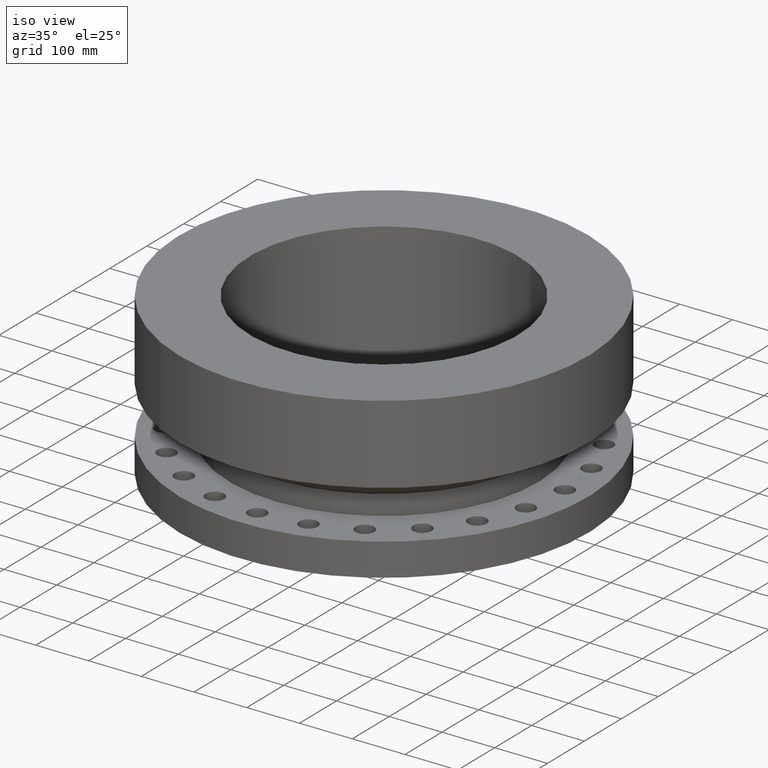
[diagram: clean part render]
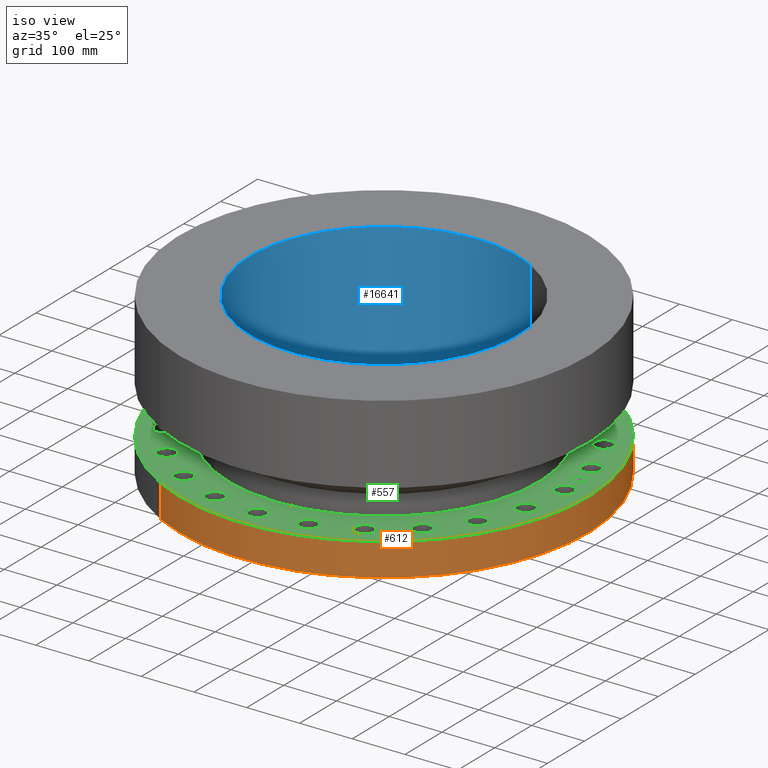
[diagram: same view with three faces highlighted in distinct colors, each labeled with its STEP entity id]
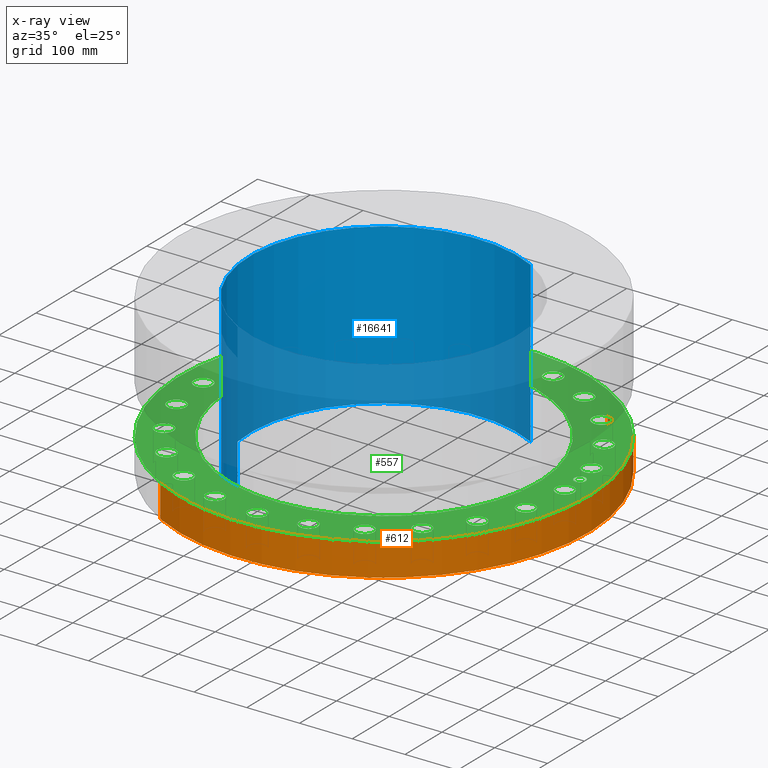
[diagram: x-ray of the same camera — body ghosted, the three highlighted faces saturated]
A machine part, iso view with three faces highlighted in distinct colors.
The next image is the same camera in x-ray (body ghosted, the three faces saturated) — at least one of them is partly hidden behind the body in this view.
Their STEP definitions:

[orange] entity #612 — the highlighted cylindrical surface (partial cylindrical patch) has radius 387.35 mm, axis along (0, 0, -1).
#82=AXIS2_PLACEMENT_3D('Circle Axis2P3D',#80,#81,$) ;
#573=AXIS2_PLACEMENT_3D('Cylinder Axis2P3D',#570,#571,#572) ;
#603=AXIS2_PLACEMENT_3D('Circle Axis2P3D',#601,#602,$) ;
#80=CARTESIAN_POINT('Axis2P3D Location',(0.,0.,2.43750000001)) ;
#84=CARTESIAN_POINT('Vertex',(7.31123946374,13.3831340689,2.43750000001)) ;
#86=CARTESIAN_POINT('Vertex',(-7.31123946374,-13.3831340689,2.43750000001)) ;
#570=CARTESIAN_POINT('Axis2P3D Location',(0.,0.,5.93750000002)) ;
#579=CARTESIAN_POINT('Vertex',(-7.31123946374,-13.3831340689,2.23792987641E-015)) ;
#581=CARTESIAN_POINT('Vertex',(7.31123946374,13.3831340689,2.23792987641E-015)) ;
#584=CARTESIAN_POINT('Line Origine',(-7.31123946374,-13.3831340689,9.00271124669)) ;
#589=CARTESIAN_POINT('Line Origine',(7.31123946374,13.3831340689,9.00271124669)) ;
#601=CARTESIAN_POINT('Axis2P3D Location',(0.,0.,2.23792987641E-015)) ;
#81=DIRECTION('Axis2P3D Direction',(0.,0.,-0.0393700787402)) ;
#571=DIRECTION('Axis2P3D Direction',(0.,0.,-0.0393700787402)) ;
#572=DIRECTION('Axis2P3D XDirection',(-0.0188750212049,-0.0345504945626,0.)) ;
#585=DIRECTION('Vector Direction',(0.,0.,-0.0393700787402)) ;
#590=DIRECTION('Vector Direction',(0.,0.,-0.0393700787402)) ;
#602=DIRECTION('Axis2P3D Direction',(0.,0.,-0.0393700787402)) ;
#586=VECTOR('Line Direction',#585,0.0393700787402) ;
#591=VECTOR('Line Direction',#590,0.0393700787402) ;
#607=ORIENTED_EDGE('',*,*,#605,.F.) ;
#608=ORIENTED_EDGE('',*,*,#593,.T.) ;
#609=ORIENTED_EDGE('',*,*,#88,.T.) ;
#610=ORIENTED_EDGE('',*,*,#588,.F.) ;
#612=ADVANCED_FACE('PartBody',(#611),#574,.T.) ;
#83=CIRCLE('generated circle',#82,15.2500000001) ;
#604=CIRCLE('generated circle',#603,15.2500000001) ;
#574=CYLINDRICAL_SURFACE('generated cylinder',#573,15.2500000001) ;
#88=EDGE_CURVE('',#85,#87,#83,.T.) ;
#588=EDGE_CURVE('',#580,#87,#587,.F.) ;
#593=EDGE_CURVE('',#582,#85,#592,.F.) ;
#605=EDGE_CURVE('',#582,#580,#604,.T.) ;
#606=EDGE_LOOP('',(#607,#608,#609,#610)) ;
#611=FACE_OUTER_BOUND('',#606,.T.) ;
#587=LINE('Line',#584,#586) ;
#592=LINE('Line',#589,#591) ;
#85=VERTEX_POINT('',#84) ;
#87=VERTEX_POINT('',#86) ;
#580=VERTEX_POINT('',#579) ;
#582=VERTEX_POINT('',#581) ;

[blue] entity #16641 — the highlighted cylindrical surface (partial cylindrical patch) has radius 254 mm, axis along (0, 0, -1).
#16164=AXIS2_PLACEMENT_3D('Circle Axis2P3D',#16162,#16163,$) ;
#16602=AXIS2_PLACEMENT_3D('Cylinder Axis2P3D',#16599,#16600,#16601) ;
#16632=AXIS2_PLACEMENT_3D('Circle Axis2P3D',#16630,#16631,$) ;
#16162=CARTESIAN_POINT('Axis2P3D Location',(0.,0.,11.9375)) ;
#16166=CARTESIAN_POINT('Vertex',(-4.79425538606,-8.77582561894,11.9375)) ;
#16168=CARTESIAN_POINT('Vertex',(4.79425538606,8.77582561894,11.9375)) ;
#16599=CARTESIAN_POINT('Axis2P3D Location',(0.,0.,5.93750000002)) ;
#16608=CARTESIAN_POINT('Vertex',(-4.79425538606,-8.77582561894,0.)) ;
#16610=CARTESIAN_POINT('Vertex',(4.79425538606,8.77582561894,0.)) ;
#16613=CARTESIAN_POINT('Line Origine',(-4.79425538606,-8.77582561894,5.96875000002)) ;
#16618=CARTESIAN_POINT('Line Origine',(4.79425538606,8.77582561894,5.96875000002)) ;
#16630=CARTESIAN_POINT('Axis2P3D Location',(0.,0.,0.)) ;
#16163=DIRECTION('Axis2P3D Direction',(0.,0.,-0.0393700787402)) ;
#16600=DIRECTION('Axis2P3D Direction',(0.,0.,-0.0393700787402)) ;
#16601=DIRECTION('Axis2P3D XDirection',(-0.0188750212049,-0.0345504945626,0.)) ;
#16614=DIRECTION('Vector Direction',(0.,0.,-0.0393700787402)) ;
#16619=DIRECTION('Vector Direction',(0.,0.,-0.0393700787402)) ;
#16631=DIRECTION('Axis2P3D Direction',(0.,0.,-0.0393700787402)) ;
#16615=VECTOR('Line Direction',#16614,0.0393700787402) ;
#16620=VECTOR('Line Direction',#16619,0.0393700787402) ;
#16636=ORIENTED_EDGE('',*,*,#16634,.F.) ;
#16637=ORIENTED_EDGE('',*,*,#16622,.F.) ;
#16638=ORIENTED_EDGE('',*,*,#16170,.F.) ;
#16639=ORIENTED_EDGE('',*,*,#16617,.T.) ;
#16641=ADVANCED_FACE('PartBody',(#16640),#16603,.F.) ;
#16165=CIRCLE('generated circle',#16164,10.) ;
#16633=CIRCLE('generated circle',#16632,10.) ;
#16603=CYLINDRICAL_SURFACE('generated cylinder',#16602,10.) ;
#16170=EDGE_CURVE('',#16167,#16169,#16165,.T.) ;
#16617=EDGE_CURVE('',#16167,#16609,#16616,.T.) ;
#16622=EDGE_CURVE('',#16169,#16611,#16621,.T.) ;
#16634=EDGE_CURVE('',#16611,#16609,#16633,.F.) ;
#16635=EDGE_LOOP('',(#16636,#16637,#16638,#16639)) ;
#16640=FACE_OUTER_BOUND('',#16635,.T.) ;
#16616=LINE('Line',#16613,#16615) ;
#16621=LINE('Line',#16618,#16620) ;
#16167=VERTEX_POINT('',#16166) ;
#16169=VERTEX_POINT('',#16168) ;
#16609=VERTEX_POINT('',#16608) ;
#16611=VERTEX_POINT('',#16610) ;

[green] entity #557 — the highlighted planar face has unit normal (0, 0, -1).
#65=AXIS2_PLACEMENT_3D('Circle Axis2P3D',#63,#64,$) ;
#78=AXIS2_PLACEMENT_3D('Plane Axis2P3D',#75,#76,#77) ;
#82=AXIS2_PLACEMENT_3D('Circle Axis2P3D',#80,#81,$) ;
#91=AXIS2_PLACEMENT_3D('Circle Axis2P3D',#89,#90,$) ;
#100=AXIS2_PLACEMENT_3D('Circle Axis2P3D',#98,#99,$) ;
#109=AXIS2_PLACEMENT_3D('Circle Axis2P3D',#107,#108,$) ;
#118=AXIS2_PLACEMENT_3D('Circle Axis2P3D',#116,#117,$) ;
#127=AXIS2_PLACEMENT_3D('Circle Axis2P3D',#125,#126,$) ;
#136=AXIS2_PLACEMENT_3D('Circle Axis2P3D',#134,#135,$) ;
#145=AXIS2_PLACEMENT_3D('Circle Axis2P3D',#143,#144,$) ;
#154=AXIS2_PLACEMENT_3D('Circle Axis2P3D',#152,#153,$) ;
#163=AXIS2_PLACEMENT_3D('Circle Axis2P3D',#161,#162,$) ;
#172=AXIS2_PLACEMENT_3D('Circle Axis2P3D',#170,#171,$) ;
#181=AXIS2_PLACEMENT_3D('Circle Axis2P3D',#179,#180,$) ;
#190=AXIS2_PLACEMENT_3D('Circle Axis2P3D',#188,#189,$) ;
#199=AXIS2_PLACEMENT_3D('Circle Axis2P3D',#197,#198,$) ;
#208=AXIS2_PLACEMENT_3D('Circle Axis2P3D',#206,#207,$) ;
#217=AXIS2_PLACEMENT_3D('Circle Axis2P3D',#215,#216,$) ;
#226=AXIS2_PLACEMENT_3D('Circle Axis2P3D',#224,#225,$) ;
#235=AXIS2_PLACEMENT_3D('Circle Axis2P3D',#233,#234,$) ;
#244=AXIS2_PLACEMENT_3D('Circle Axis2P3D',#242,#243,$) ;
#253=AXIS2_PLACEMENT_3D('Circle Axis2P3D',#251,#252,$) ;
#262=AXIS2_PLACEMENT_3D('Circle Axis2P3D',#260,#261,$) ;
#271=AXIS2_PLACEMENT_3D('Circle Axis2P3D',#269,#270,$) ;
#280=AXIS2_PLACEMENT_3D('Circle Axis2P3D',#278,#279,$) ;
#289=AXIS2_PLACEMENT_3D('Circle Axis2P3D',#287,#288,$) ;
#298=AXIS2_PLACEMENT_3D('Circle Axis2P3D',#296,#297,$) ;
#307=AXIS2_PLACEMENT_3D('Circle Axis2P3D',#305,#306,$) ;
#316=AXIS2_PLACEMENT_3D('Circle Axis2P3D',#314,#315,$) ;
#325=AXIS2_PLACEMENT_3D('Circle Axis2P3D',#323,#324,$) ;
#334=AXIS2_PLACEMENT_3D('Circle Axis2P3D',#332,#333,$) ;
#343=AXIS2_PLACEMENT_3D('Circle Axis2P3D',#341,#342,$) ;
#352=AXIS2_PLACEMENT_3D('Circle Axis2P3D',#350,#351,$) ;
#361=AXIS2_PLACEMENT_3D('Circle Axis2P3D',#359,#360,$) ;
#370=AXIS2_PLACEMENT_3D('Circle Axis2P3D',#368,#369,$) ;
#379=AXIS2_PLACEMENT_3D('Circle Axis2P3D',#377,#378,$) ;
#388=AXIS2_PLACEMENT_3D('Circle Axis2P3D',#386,#387,$) ;
#397=AXIS2_PLACEMENT_3D('Circle Axis2P3D',#395,#396,$) ;
#406=AXIS2_PLACEMENT_3D('Circle Axis2P3D',#404,#405,$) ;
#415=AXIS2_PLACEMENT_3D('Circle Axis2P3D',#413,#414,$) ;
#424=AXIS2_PLACEMENT_3D('Circle Axis2P3D',#422,#423,$) ;
#433=AXIS2_PLACEMENT_3D('Circle Axis2P3D',#431,#432,$) ;
#442=AXIS2_PLACEMENT_3D('Circle Axis2P3D',#440,#441,$) ;
#451=AXIS2_PLACEMENT_3D('Circle Axis2P3D',#449,#450,$) ;
#460=AXIS2_PLACEMENT_3D('Circle Axis2P3D',#458,#459,$) ;
#469=AXIS2_PLACEMENT_3D('Circle Axis2P3D',#467,#468,$) ;
#478=AXIS2_PLACEMENT_3D('Circle Axis2P3D',#476,#477,$) ;
#487=AXIS2_PLACEMENT_3D('Circle Axis2P3D',#485,#486,$) ;
#496=AXIS2_PLACEMENT_3D('Circle Axis2P3D',#494,#495,$) ;
#505=AXIS2_PLACEMENT_3D('Circle Axis2P3D',#503,#504,$) ;
#514=AXIS2_PLACEMENT_3D('Circle Axis2P3D',#512,#513,$) ;
#523=AXIS2_PLACEMENT_3D('Circle Axis2P3D',#521,#522,$) ;
#532=AXIS2_PLACEMENT_3D('Circle Axis2P3D',#530,#531,$) ;
#541=AXIS2_PLACEMENT_3D('Circle Axis2P3D',#539,#540,$) ;
#550=AXIS2_PLACEMENT_3D('Circle Axis2P3D',#548,#549,$) ;
#44=CARTESIAN_POINT('Vertex',(14.1055319678,0.330803621638,2.43750000001)) ;
#60=CARTESIAN_POINT('Vertex',(12.8944680323,-0.330803621638,2.43750000001)) ;
#63=CARTESIAN_POINT('Axis2P3D Location',(13.5000000001,0.,2.43750000001)) ;
#75=CARTESIAN_POINT('Axis2P3D Location',(0.,15.2500000001,2.43750000001)) ;
#80=CARTESIAN_POINT('Axis2P3D Location',(0.,0.,2.43750000001)) ;
#84=CARTESIAN_POINT('Vertex',(7.31123946374,13.3831340689,2.43750000001)) ;
#86=CARTESIAN_POINT('Vertex',(-7.31123946374,-13.3831340689,2.43750000001)) ;
#89=CARTESIAN_POINT('Axis2P3D Location',(0.,0.,2.43750000001)) ;
#98=CARTESIAN_POINT('Axis2P3D Location',(13.5000000001,0.,2.43750000001)) ;
#107=CARTESIAN_POINT('Axis2P3D Location',(0.,0.,2.43750000001)) ;
#111=CARTESIAN_POINT('Vertex',(-5.53496784321,-10.1316906771,2.43750000001)) ;
#113=CARTESIAN_POINT('Vertex',(5.53496784321,10.1316906771,2.43750000001)) ;
#116=CARTESIAN_POINT('Axis2P3D Location',(0.,0.,2.43750000001)) ;
#125=CARTESIAN_POINT('Axis2P3D Location',(13.039998655,-3.4940571089,2.43750000001)) ;
#129=CARTESIAN_POINT('Vertex',(12.3694814112,-3.65686566481,2.43750000001)) ;
#131=CARTESIAN_POINT('Vertex',(13.7105158987,-3.33124855299,2.43750000001)) ;
#134=CARTESIAN_POINT('Axis2P3D Location',(13.039998655,-3.4940571089,2.43750000001)) ;
#143=CARTESIAN_POINT('Axis2P3D Location',(11.6913429511,-6.75000000003,2.43750000001)) ;
#147=CARTESIAN_POINT('Vertex',(11.0015350735,-6.73371835618,2.43750000001)) ;
#149=CARTESIAN_POINT('Vertex',(12.3811508288,-6.76628164388,2.43750000001)) ;
#152=CARTESIAN_POINT('Axis2P3D Location',(11.6913429511,-6.75000000003,2.43750000001)) ;
#161=CARTESIAN_POINT('Axis2P3D Location',(9.54594154606,-9.54594154606,2.43750000001)) ;
#165=CARTESIAN_POINT('Vertex',(8.88385230136,-9.35167926957,2.43750000001)) ;
#167=CARTESIAN_POINT('Vertex',(10.2080307907,-9.74020382255,2.43750000001)) ;
#170=CARTESIAN_POINT('Axis2P3D Location',(9.54594154606,-9.54594154606,2.43750000001)) ;
#179=CARTESIAN_POINT('Axis2P3D Location',(6.75000000003,-11.6913429511,2.43750000001)) ;
#183=CARTESIAN_POINT('Vertex',(6.16074967617,-11.3323386951,2.43750000001)) ;
#185=CARTESIAN_POINT('Vertex',(7.33925032388,-12.0503472072,2.43750000001)) ;
#188=CARTESIAN_POINT('Axis2P3D Location',(6.75000000003,-11.6913429511,2.43750000001)) ;
#197=CARTESIAN_POINT('Axis2P3D Location',(3.4940571089,-13.039998655,2.43750000001)) ;
#201=CARTESIAN_POINT('Vertex',(3.01780214167,-12.5407179662,2.43750000001)) ;
#203=CARTESIAN_POINT('Vertex',(3.97031207613,-13.5392793437,2.43750000001)) ;
#206=CARTESIAN_POINT('Axis2P3D Location',(3.4940571089,-13.039998655,2.43750000001)) ;
#215=CARTESIAN_POINT('Axis2P3D Location',(-1.53857679003E-015,-13.5000000001,2.43750000001)) ;
#219=CARTESIAN_POINT('Vertex',(-0.330803621638,-12.8944680323,2.43750000001)) ;
#221=CARTESIAN_POINT('Vertex',(0.330803621638,-14.1055319678,2.43750000001)) ;
#224=CARTESIAN_POINT('Axis2P3D Location',(-1.39870617276E-015,-13.5000000001,2.43750000001)) ;
#233=CARTESIAN_POINT('Axis2P3D Location',(-3.4940571089,-13.039998655,2.43750000001)) ;
#237=CARTESIAN_POINT('Vertex',(-3.65686566481,-12.3694814112,2.43750000001)) ;
#239=CARTESIAN_POINT('Vertex',(-3.33124855299,-13.7105158987,2.43750000001)) ;
#242=CARTESIAN_POINT('Axis2P3D Location',(-3.4940571089,-13.039998655,2.43750000001)) ;
#251=CARTESIAN_POINT('Axis2P3D Location',(-6.75000000003,-11.6913429511,2.43750000001)) ;
#255=CARTESIAN_POINT('Vertex',(-6.73371835618,-11.0015350735,2.43750000001)) ;
#257=CARTESIAN_POINT('Vertex',(-6.76628164388,-12.3811508288,2.43750000001)) ;
#260=CARTESIAN_POINT('Axis2P3D Location',(-6.75000000003,-11.6913429511,2.43750000001)) ;
#269=CARTESIAN_POINT('Axis2P3D Location',(-9.54594154606,-9.54594154606,2.43750000001)) ;
#273=CARTESIAN_POINT('Vertex',(-9.35167926957,-8.88385230136,2.43750000001)) ;
#275=CARTESIAN_POINT('Vertex',(-9.74020382255,-10.2080307907,2.43750000001)) ;
#278=CARTESIAN_POINT('Axis2P3D Location',(-9.54594154606,-9.54594154606,2.43750000001)) ;
#287=CARTESIAN_POINT('Axis2P3D Location',(-11.6913429511,-6.75000000003,2.43750000001)) ;
#291=CARTESIAN_POINT('Vertex',(-11.3323386951,-6.16074967617,2.43750000001)) ;
#293=CARTESIAN_POINT('Vertex',(-12.0503472072,-7.33925032388,2.43750000001)) ;
#296=CARTESIAN_POINT('Axis2P3D Location',(-11.6913429511,-6.75000000003,2.43750000001)) ;
#305=CARTESIAN_POINT('Axis2P3D Location',(-13.039998655,-3.4940571089,2.43750000001)) ;
#309=CARTESIAN_POINT('Vertex',(-12.5407179662,-3.01780214167,2.43750000001)) ;
#311=CARTESIAN_POINT('Vertex',(-13.5392793437,-3.97031207613,2.43750000001)) ;
#314=CARTESIAN_POINT('Axis2P3D Location',(-13.039998655,-3.4940571089,2.43750000001)) ;
#323=CARTESIAN_POINT('Axis2P3D Location',(-13.5000000001,-2.23792987641E-015,2.43750000001)) ;
#327=CARTESIAN_POINT('Vertex',(-12.8944680323,0.330803621638,2.43750000001)) ;
#329=CARTESIAN_POINT('Vertex',(-14.1055319678,-0.330803621638,2.43750000001)) ;
#332=CARTESIAN_POINT('Axis2P3D Location',(-13.5000000001,0.,2.43750000001)) ;
#341=CARTESIAN_POINT('Axis2P3D Location',(-13.039998655,3.4940571089,2.43750000001)) ;
#345=CARTESIAN_POINT('Vertex',(-12.3694814112,3.65686566481,2.43750000001)) ;
#347=CARTESIAN_POINT('Vertex',(-13.7105158987,3.33124855299,2.43750000001)) ;
#350=CARTESIAN_POINT('Axis2P3D Location',(-13.039998655,3.4940571089,2.43750000001)) ;
#359=CARTESIAN_POINT('Axis2P3D Location',(-11.6913429511,6.75000000003,2.43750000001)) ;
#363=CARTESIAN_POINT('Vertex',(-11.0015350735,6.73371835618,2.43750000001)) ;
#365=CARTESIAN_POINT('Vertex',(-12.3811508288,6.76628164388,2.43750000001)) ;
#368=CARTESIAN_POINT('Axis2P3D Location',(-11.6913429511,6.75000000003,2.43750000001)) ;
#377=CARTESIAN_POINT('Axis2P3D Location',(-9.54594154606,9.54594154606,2.43750000001)) ;
#381=CARTESIAN_POINT('Vertex',(-8.88385230136,9.35167926957,2.43750000001)) ;
#383=CARTESIAN_POINT('Vertex',(-10.2080307907,9.74020382255,2.43750000001)) ;
#386=CARTESIAN_POINT('Axis2P3D Location',(-9.54594154606,9.54594154606,2.43750000001)) ;
#395=CARTESIAN_POINT('Axis2P3D Location',(-6.75000000003,11.6913429511,2.43750000001)) ;
#399=CARTESIAN_POINT('Vertex',(-6.16074967617,11.3323386951,2.43750000001)) ;
#401=CARTESIAN_POINT('Vertex',(-7.33925032388,12.0503472072,2.43750000001)) ;
#404=CARTESIAN_POINT('Axis2P3D Location',(-6.75000000003,11.6913429511,2.43750000001)) ;
#413=CARTESIAN_POINT('Axis2P3D Location',(-3.4940571089,13.039998655,2.43750000001)) ;
#417=CARTESIAN_POINT('Vertex',(-3.01780214167,12.5407179662,2.43750000001)) ;
#419=CARTESIAN_POINT('Vertex',(-3.97031207613,13.5392793437,2.43750000001)) ;
#422=CARTESIAN_POINT('Axis2P3D Location',(-3.4940571089,13.039998655,2.43750000001)) ;
#431=CARTESIAN_POINT('Axis2P3D Location',(-2.16799456777E-015,13.5000000001,2.43750000001)) ;
#435=CARTESIAN_POINT('Vertex',(0.330803621638,12.8944680323,2.43750000001)) ;
#437=CARTESIAN_POINT('Vertex',(-0.330803621638,14.1055319678,2.43750000001)) ;
#440=CARTESIAN_POINT('Axis2P3D Location',(-2.51767111096E-015,13.5000000001,2.43750000001)) ;
#449=CARTESIAN_POINT('Axis2P3D Location',(3.4940571089,13.039998655,2.43750000001)) ;
#453=CARTESIAN_POINT('Vertex',(3.65686566481,12.3694814112,2.43750000001)) ;
#455=CARTESIAN_POINT('Vertex',(3.33124855299,13.7105158987,2.43750000001)) ;
#458=CARTESIAN_POINT('Axis2P3D Location',(3.4940571089,13.039998655,2.43750000001)) ;
#467=CARTESIAN_POINT('Axis2P3D Location',(6.75000000003,11.6913429511,2.43750000001)) ;
#471=CARTESIAN_POINT('Vertex',(6.73371835618,11.0015350735,2.43750000001)) ;
#473=CARTESIAN_POINT('Vertex',(6.76628164388,12.3811508288,2.43750000001)) ;
#476=CARTESIAN_POINT('Axis2P3D Location',(6.75000000003,11.6913429511,2.43750000001)) ;
#485=CARTESIAN_POINT('Axis2P3D Location',(9.54594154606,9.54594154606,2.43750000001)) ;
#489=CARTESIAN_POINT('Vertex',(9.35167926957,8.88385230136,2.43750000001)) ;
#491=CARTESIAN_POINT('Vertex',(9.74020382255,10.2080307907,2.43750000001)) ;
#494=CARTESIAN_POINT('Axis2P3D Location',(9.54594154606,9.54594154606,2.43750000001)) ;
#503=CARTESIAN_POINT('Axis2P3D Location',(11.6913429511,6.75000000003,2.43750000001)) ;
#507=CARTESIAN_POINT('Vertex',(11.3323386951,6.16074967617,2.43750000001)) ;
#509=CARTESIAN_POINT('Vertex',(12.0503472072,7.33925032388,2.43750000001)) ;
#512=CARTESIAN_POINT('Axis2P3D Location',(11.6913429511,6.75000000003,2.43750000001)) ;
#521=CARTESIAN_POINT('Axis2P3D Location',(13.039998655,3.4940571089,2.43750000001)) ;
#525=CARTESIAN_POINT('Vertex',(12.5407179662,3.01780214167,2.43750000001)) ;
#527=CARTESIAN_POINT('Vertex',(13.5392793437,3.97031207613,2.43750000001)) ;
#530=CARTESIAN_POINT('Axis2P3D Location',(13.039998655,3.4940571089,2.43750000001)) ;
#539=CARTESIAN_POINT('Axis2P3D Location',(13.3845056286,1.76210359498,2.43750000001)) ;
#543=CARTESIAN_POINT('Vertex',(13.4399792597,1.34073953311,2.43750000001)) ;
#545=CARTESIAN_POINT('Vertex',(13.3290319975,2.18346765685,2.43750000001)) ;
#548=CARTESIAN_POINT('Axis2P3D Location',(13.3845056286,1.76210359498,2.43750000001)) ;
#64=DIRECTION('Axis2P3D Direction',(0.,-0.,0.0393700787402)) ;
#76=DIRECTION('Axis2P3D Direction',(0.,0.,-0.0393700787402)) ;
#77=DIRECTION('Axis2P3D XDirection',(0.0393700787402,0.,0.)) ;
#81=DIRECTION('Axis2P3D Direction',(0.,0.,-0.0393700787402)) ;
#90=DIRECTION('Axis2P3D Direction',(0.,0.,-0.0393700787402)) ;
#99=DIRECTION('Axis2P3D Direction',(0.,0.,-0.0393700787402)) ;
#108=DIRECTION('Axis2P3D Direction',(0.,0.,-0.0393700787402)) ;
#117=DIRECTION('Axis2P3D Direction',(0.,0.,-0.0393700787402)) ;
#126=DIRECTION('Axis2P3D Direction',(0.,0.,-0.0393700787402)) ;
#135=DIRECTION('Axis2P3D Direction',(0.,0.,-0.0393700787402)) ;
#144=DIRECTION('Axis2P3D Direction',(0.,0.,-0.0393700787402)) ;
#153=DIRECTION('Axis2P3D Direction',(0.,0.,-0.0393700787402)) ;
#162=DIRECTION('Axis2P3D Direction',(0.,0.,-0.0393700787402)) ;
#171=DIRECTION('Axis2P3D Direction',(0.,0.,-0.0393700787402)) ;
#180=DIRECTION('Axis2P3D Direction',(0.,0.,-0.0393700787402)) ;
#189=DIRECTION('Axis2P3D Direction',(0.,0.,-0.0393700787402)) ;
#198=DIRECTION('Axis2P3D Direction',(0.,0.,-0.0393700787402)) ;
#207=DIRECTION('Axis2P3D Direction',(0.,0.,-0.0393700787402)) ;
#216=DIRECTION('Axis2P3D Direction',(0.,0.,-0.0393700787402)) ;
#225=DIRECTION('Axis2P3D Direction',(0.,0.,-0.0393700787402)) ;
#234=DIRECTION('Axis2P3D Direction',(0.,0.,-0.0393700787402)) ;
#243=DIRECTION('Axis2P3D Direction',(0.,0.,-0.0393700787402)) ;
#252=DIRECTION('Axis2P3D Direction',(0.,0.,-0.0393700787402)) ;
#261=DIRECTION('Axis2P3D Direction',(0.,0.,-0.0393700787402)) ;
#270=DIRECTION('Axis2P3D Direction',(0.,0.,-0.0393700787402)) ;
#279=DIRECTION('Axis2P3D Direction',(0.,0.,-0.0393700787402)) ;
#288=DIRECTION('Axis2P3D Direction',(0.,0.,-0.0393700787402)) ;
#297=DIRECTION('Axis2P3D Direction',(0.,0.,-0.0393700787402)) ;
#306=DIRECTION('Axis2P3D Direction',(0.,0.,-0.0393700787402)) ;
#315=DIRECTION('Axis2P3D Direction',(0.,0.,-0.0393700787402)) ;
#324=DIRECTION('Axis2P3D Direction',(0.,0.,-0.0393700787402)) ;
#333=DIRECTION('Axis2P3D Direction',(0.,0.,-0.0393700787402)) ;
#342=DIRECTION('Axis2P3D Direction',(0.,0.,-0.0393700787402)) ;
#351=DIRECTION('Axis2P3D Direction',(0.,0.,-0.0393700787402)) ;
#360=DIRECTION('Axis2P3D Direction',(0.,0.,-0.0393700787402)) ;
#369=DIRECTION('Axis2P3D Direction',(0.,0.,-0.0393700787402)) ;
#378=DIRECTION('Axis2P3D Direction',(0.,0.,-0.0393700787402)) ;
#387=DIRECTION('Axis2P3D Direction',(0.,0.,-0.0393700787402)) ;
#396=DIRECTION('Axis2P3D Direction',(0.,0.,-0.0393700787402)) ;
#405=DIRECTION('Axis2P3D Direction',(0.,0.,-0.0393700787402)) ;
#414=DIRECTION('Axis2P3D Direction',(0.,0.,-0.0393700787402)) ;
#423=DIRECTION('Axis2P3D Direction',(0.,0.,-0.0393700787402)) ;
#432=DIRECTION('Axis2P3D Direction',(0.,0.,-0.0393700787402)) ;
#441=DIRECTION('Axis2P3D Direction',(0.,0.,-0.0393700787402)) ;
#450=DIRECTION('Axis2P3D Direction',(0.,0.,-0.0393700787402)) ;
#459=DIRECTION('Axis2P3D Direction',(0.,0.,-0.0393700787402)) ;
#468=DIRECTION('Axis2P3D Direction',(0.,0.,-0.0393700787402)) ;
#477=DIRECTION('Axis2P3D Direction',(0.,0.,-0.0393700787402)) ;
#486=DIRECTION('Axis2P3D Direction',(0.,0.,-0.0393700787402)) ;
#495=DIRECTION('Axis2P3D Direction',(0.,0.,-0.0393700787402)) ;
#504=DIRECTION('Axis2P3D Direction',(0.,0.,-0.0393700787402)) ;
#513=DIRECTION('Axis2P3D Direction',(0.,0.,-0.0393700787402)) ;
#522=DIRECTION('Axis2P3D Direction',(0.,0.,-0.0393700787402)) ;
#531=DIRECTION('Axis2P3D Direction',(0.,0.,-0.0393700787402)) ;
#540=DIRECTION('Axis2P3D Direction',(0.,0.,-0.0393700787402)) ;
#549=DIRECTION('Axis2P3D Direction',(0.,0.,-0.0393700787402)) ;
#95=ORIENTED_EDGE('',*,*,#88,.F.) ;
#96=ORIENTED_EDGE('',*,*,#93,.F.) ;
#104=ORIENTED_EDGE('',*,*,#67,.T.) ;
#105=ORIENTED_EDGE('',*,*,#102,.T.) ;
#122=ORIENTED_EDGE('',*,*,#115,.T.) ;
#123=ORIENTED_EDGE('',*,*,#120,.T.) ;
#140=ORIENTED_EDGE('',*,*,#133,.T.) ;
#141=ORIENTED_EDGE('',*,*,#138,.T.) ;
#158=ORIENTED_EDGE('',*,*,#151,.T.) ;
#159=ORIENTED_EDGE('',*,*,#156,.T.) ;
#176=ORIENTED_EDGE('',*,*,#169,.T.) ;
#177=ORIENTED_EDGE('',*,*,#174,.T.) ;
#194=ORIENTED_EDGE('',*,*,#187,.T.) ;
#195=ORIENTED_EDGE('',*,*,#192,.T.) ;
#212=ORIENTED_EDGE('',*,*,#205,.T.) ;
#213=ORIENTED_EDGE('',*,*,#210,.T.) ;
#230=ORIENTED_EDGE('',*,*,#223,.T.) ;
#231=ORIENTED_EDGE('',*,*,#228,.T.) ;
#248=ORIENTED_EDGE('',*,*,#241,.T.) ;
#249=ORIENTED_EDGE('',*,*,#246,.T.) ;
#266=ORIENTED_EDGE('',*,*,#259,.T.) ;
#267=ORIENTED_EDGE('',*,*,#264,.T.) ;
#284=ORIENTED_EDGE('',*,*,#277,.T.) ;
#285=ORIENTED_EDGE('',*,*,#282,.T.) ;
#302=ORIENTED_EDGE('',*,*,#295,.T.) ;
#303=ORIENTED_EDGE('',*,*,#300,.T.) ;
#320=ORIENTED_EDGE('',*,*,#313,.T.) ;
#321=ORIENTED_EDGE('',*,*,#318,.T.) ;
#338=ORIENTED_EDGE('',*,*,#331,.T.) ;
#339=ORIENTED_EDGE('',*,*,#336,.T.) ;
#356=ORIENTED_EDGE('',*,*,#349,.T.) ;
#357=ORIENTED_EDGE('',*,*,#354,.T.) ;
#374=ORIENTED_EDGE('',*,*,#367,.T.) ;
#375=ORIENTED_EDGE('',*,*,#372,.T.) ;
#392=ORIENTED_EDGE('',*,*,#385,.T.) ;
#393=ORIENTED_EDGE('',*,*,#390,.T.) ;
#410=ORIENTED_EDGE('',*,*,#403,.T.) ;
#411=ORIENTED_EDGE('',*,*,#408,.T.) ;
#428=ORIENTED_EDGE('',*,*,#421,.T.) ;
#429=ORIENTED_EDGE('',*,*,#426,.T.) ;
#446=ORIENTED_EDGE('',*,*,#439,.T.) ;
#447=ORIENTED_EDGE('',*,*,#444,.T.) ;
#464=ORIENTED_EDGE('',*,*,#457,.T.) ;
#465=ORIENTED_EDGE('',*,*,#462,.T.) ;
#482=ORIENTED_EDGE('',*,*,#475,.T.) ;
#483=ORIENTED_EDGE('',*,*,#480,.T.) ;
#500=ORIENTED_EDGE('',*,*,#493,.T.) ;
#501=ORIENTED_EDGE('',*,*,#498,.T.) ;
#518=ORIENTED_EDGE('',*,*,#511,.T.) ;
#519=ORIENTED_EDGE('',*,*,#516,.T.) ;
#536=ORIENTED_EDGE('',*,*,#529,.T.) ;
#537=ORIENTED_EDGE('',*,*,#534,.T.) ;
#554=ORIENTED_EDGE('',*,*,#547,.F.) ;
#555=ORIENTED_EDGE('',*,*,#552,.F.) ;
#106=FACE_BOUND('',#103,.T.) ;
#124=FACE_BOUND('',#121,.T.) ;
#142=FACE_BOUND('',#139,.T.) ;
#160=FACE_BOUND('',#157,.T.) ;
#178=FACE_BOUND('',#175,.T.) ;
#196=FACE_BOUND('',#193,.T.) ;
#214=FACE_BOUND('',#211,.T.) ;
#232=FACE_BOUND('',#229,.T.) ;
#250=FACE_BOUND('',#247,.T.) ;
#268=FACE_BOUND('',#265,.T.) ;
#286=FACE_BOUND('',#283,.T.) ;
#304=FACE_BOUND('',#301,.T.) ;
#322=FACE_BOUND('',#319,.T.) ;
#340=FACE_BOUND('',#337,.T.) ;
#358=FACE_BOUND('',#355,.T.) ;
#376=FACE_BOUND('',#373,.T.) ;
#394=FACE_BOUND('',#391,.T.) ;
#412=FACE_BOUND('',#409,.T.) ;
#430=FACE_BOUND('',#427,.T.) ;
#448=FACE_BOUND('',#445,.T.) ;
#466=FACE_BOUND('',#463,.T.) ;
#484=FACE_BOUND('',#481,.T.) ;
#502=FACE_BOUND('',#499,.T.) ;
#520=FACE_BOUND('',#517,.T.) ;
#538=FACE_BOUND('',#535,.T.) ;
#556=FACE_BOUND('',#553,.T.) ;
#557=ADVANCED_FACE('PartBody',(#97,#106,#124,#142,#160,#178,#196,#214,#232,#250,#268,#286,#304,#322,#340,#358,#376,#394,#412,#430,#448,#466,#484,#502,#520,#538,#556),#79,.F.) ;
#66=CIRCLE('generated circle',#65,0.690000000003) ;
#83=CIRCLE('generated circle',#82,15.2500000001) ;
#92=CIRCLE('generated circle',#91,15.2500000001) ;
#101=CIRCLE('generated circle',#100,0.690000000003) ;
#110=CIRCLE('generated circle',#109,11.545) ;
#119=CIRCLE('generated circle',#118,11.545) ;
#128=CIRCLE('generated circle',#127,0.690000000003) ;
#137=CIRCLE('generated circle',#136,0.690000000003) ;
#146=CIRCLE('generated circle',#145,0.690000000003) ;
#155=CIRCLE('generated circle',#154,0.690000000003) ;
#164=CIRCLE('generated circle',#163,0.690000000003) ;
#173=CIRCLE('generated circle',#172,0.690000000003) ;
#182=CIRCLE('generated circle',#181,0.690000000003) ;
#191=CIRCLE('generated circle',#190,0.690000000003) ;
#200=CIRCLE('generated circle',#199,0.690000000003) ;
#209=CIRCLE('generated circle',#208,0.690000000003) ;
#218=CIRCLE('generated circle',#217,0.690000000003) ;
#227=CIRCLE('generated circle',#226,0.690000000003) ;
#236=CIRCLE('generated circle',#235,0.690000000003) ;
#245=CIRCLE('generated circle',#244,0.690000000003) ;
#254=CIRCLE('generated circle',#253,0.690000000003) ;
#263=CIRCLE('generated circle',#262,0.690000000003) ;
#272=CIRCLE('generated circle',#271,0.690000000003) ;
#281=CIRCLE('generated circle',#280,0.690000000003) ;
#290=CIRCLE('generated circle',#289,0.690000000003) ;
#299=CIRCLE('generated circle',#298,0.690000000003) ;
#308=CIRCLE('generated circle',#307,0.690000000003) ;
#317=CIRCLE('generated circle',#316,0.690000000003) ;
#326=CIRCLE('generated circle',#325,0.690000000003) ;
#335=CIRCLE('generated circle',#334,0.690000000003) ;
#344=CIRCLE('generated circle',#343,0.690000000003) ;
#353=CIRCLE('generated circle',#352,0.690000000003) ;
#362=CIRCLE('generated circle',#361,0.690000000003) ;
#371=CIRCLE('generated circle',#370,0.690000000003) ;
#380=CIRCLE('generated circle',#379,0.690000000003) ;
#389=CIRCLE('generated circle',#388,0.690000000003) ;
#398=CIRCLE('generated circle',#397,0.690000000003) ;
#407=CIRCLE('generated circle',#406,0.690000000003) ;
#416=CIRCLE('generated circle',#415,0.690000000003) ;
#425=CIRCLE('generated circle',#424,0.690000000003) ;
#434=CIRCLE('generated circle',#433,0.690000000003) ;
#443=CIRCLE('generated circle',#442,0.690000000003) ;
#452=CIRCLE('generated circle',#451,0.690000000003) ;
#461=CIRCLE('generated circle',#460,0.690000000003) ;
#470=CIRCLE('generated circle',#469,0.690000000003) ;
#479=CIRCLE('generated circle',#478,0.690000000003) ;
#488=CIRCLE('generated circle',#487,0.690000000003) ;
#497=CIRCLE('generated circle',#496,0.690000000003) ;
#506=CIRCLE('generated circle',#505,0.690000000003) ;
#515=CIRCLE('generated circle',#514,0.690000000003) ;
#524=CIRCLE('generated circle',#523,0.690000000003) ;
#533=CIRCLE('generated circle',#532,0.690000000003) ;
#542=CIRCLE('generated circle',#541,0.424999995752) ;
#551=CIRCLE('generated circle',#550,0.424999995752) ;
#67=EDGE_CURVE('',#45,#61,#66,.F.) ;
#88=EDGE_CURVE('',#85,#87,#83,.T.) ;
#93=EDGE_CURVE('',#87,#85,#92,.T.) ;
#102=EDGE_CURVE('',#61,#45,#101,.T.) ;
#115=EDGE_CURVE('',#112,#114,#110,.T.) ;
#120=EDGE_CURVE('',#114,#112,#119,.T.) ;
#133=EDGE_CURVE('',#130,#132,#128,.T.) ;
#138=EDGE_CURVE('',#132,#130,#137,.T.) ;
#151=EDGE_CURVE('',#148,#150,#146,.T.) ;
#156=EDGE_CURVE('',#150,#148,#155,.T.) ;
#169=EDGE_CURVE('',#166,#168,#164,.T.) ;
#174=EDGE_CURVE('',#168,#166,#173,.T.) ;
#187=EDGE_CURVE('',#184,#186,#182,.T.) ;
#192=EDGE_CURVE('',#186,#184,#191,.T.) ;
#205=EDGE_CURVE('',#202,#204,#200,.T.) ;
#210=EDGE_CURVE('',#204,#202,#209,.T.) ;
#223=EDGE_CURVE('',#220,#222,#218,.T.) ;
#228=EDGE_CURVE('',#222,#220,#227,.T.) ;
#241=EDGE_CURVE('',#238,#240,#236,.T.) ;
#246=EDGE_CURVE('',#240,#238,#245,.T.) ;
#259=EDGE_CURVE('',#256,#258,#254,.T.) ;
#264=EDGE_CURVE('',#258,#256,#263,.T.) ;
#277=EDGE_CURVE('',#274,#276,#272,.T.) ;
#282=EDGE_CURVE('',#276,#274,#281,.T.) ;
#295=EDGE_CURVE('',#292,#294,#290,.T.) ;
#300=EDGE_CURVE('',#294,#292,#299,.T.) ;
#313=EDGE_CURVE('',#310,#312,#308,.T.) ;
#318=EDGE_CURVE('',#312,#310,#317,.T.) ;
#331=EDGE_CURVE('',#328,#330,#326,.T.) ;
#336=EDGE_CURVE('',#330,#328,#335,.T.) ;
#349=EDGE_CURVE('',#346,#348,#344,.T.) ;
#354=EDGE_CURVE('',#348,#346,#353,.T.) ;
#367=EDGE_CURVE('',#364,#366,#362,.T.) ;
#372=EDGE_CURVE('',#366,#364,#371,.T.) ;
#385=EDGE_CURVE('',#382,#384,#380,.T.) ;
#390=EDGE_CURVE('',#384,#382,#389,.T.) ;
#403=EDGE_CURVE('',#400,#402,#398,.T.) ;
#408=EDGE_CURVE('',#402,#400,#407,.T.) ;
#421=EDGE_CURVE('',#418,#420,#416,.T.) ;
#426=EDGE_CURVE('',#420,#418,#425,.T.) ;
#439=EDGE_CURVE('',#436,#438,#434,.T.) ;
#444=EDGE_CURVE('',#438,#436,#443,.T.) ;
#457=EDGE_CURVE('',#454,#456,#452,.T.) ;
#462=EDGE_CURVE('',#456,#454,#461,.T.) ;
#475=EDGE_CURVE('',#472,#474,#470,.T.) ;
#480=EDGE_CURVE('',#474,#472,#479,.T.) ;
#493=EDGE_CURVE('',#490,#492,#488,.T.) ;
#498=EDGE_CURVE('',#492,#490,#497,.T.) ;
#511=EDGE_CURVE('',#508,#510,#506,.T.) ;
#516=EDGE_CURVE('',#510,#508,#515,.T.) ;
#529=EDGE_CURVE('',#526,#528,#524,.T.) ;
#534=EDGE_CURVE('',#528,#526,#533,.T.) ;
#547=EDGE_CURVE('',#544,#546,#542,.F.) ;
#552=EDGE_CURVE('',#546,#544,#551,.F.) ;
#94=EDGE_LOOP('',(#95,#96)) ;
#103=EDGE_LOOP('',(#104,#105)) ;
#121=EDGE_LOOP('',(#122,#123)) ;
#139=EDGE_LOOP('',(#140,#141)) ;
#157=EDGE_LOOP('',(#158,#159)) ;
#175=EDGE_LOOP('',(#176,#177)) ;
#193=EDGE_LOOP('',(#194,#195)) ;
#211=EDGE_LOOP('',(#212,#213)) ;
#229=EDGE_LOOP('',(#230,#231)) ;
#247=EDGE_LOOP('',(#248,#249)) ;
#265=EDGE_LOOP('',(#266,#267)) ;
#283=EDGE_LOOP('',(#284,#285)) ;
#301=EDGE_LOOP('',(#302,#303)) ;
#319=EDGE_LOOP('',(#320,#321)) ;
#337=EDGE_LOOP('',(#338,#339)) ;
#355=EDGE_LOOP('',(#356,#357)) ;
#373=EDGE_LOOP('',(#374,#375)) ;
#391=EDGE_LOOP('',(#392,#393)) ;
#409=EDGE_LOOP('',(#410,#411)) ;
#427=EDGE_LOOP('',(#428,#429)) ;
#445=EDGE_LOOP('',(#446,#447)) ;
#463=EDGE_LOOP('',(#464,#465)) ;
#481=EDGE_LOOP('',(#482,#483)) ;
#499=EDGE_LOOP('',(#500,#501)) ;
#517=EDGE_LOOP('',(#518,#519)) ;
#535=EDGE_LOOP('',(#536,#537)) ;
#553=EDGE_LOOP('',(#554,#555)) ;
#97=FACE_OUTER_BOUND('',#94,.T.) ;
#79=PLANE('',#78) ;
#45=VERTEX_POINT('',#44) ;
#61=VERTEX_POINT('',#60) ;
#85=VERTEX_POINT('',#84) ;
#87=VERTEX_POINT('',#86) ;
#112=VERTEX_POINT('',#111) ;
#114=VERTEX_POINT('',#113) ;
#130=VERTEX_POINT('',#129) ;
#132=VERTEX_POINT('',#131) ;
#148=VERTEX_POINT('',#147) ;
#150=VERTEX_POINT('',#149) ;
#166=VERTEX_POINT('',#165) ;
#168=VERTEX_POINT('',#167) ;
#184=VERTEX_POINT('',#183) ;
#186=VERTEX_POINT('',#185) ;
#202=VERTEX_POINT('',#201) ;
#204=VERTEX_POINT('',#203) ;
#220=VERTEX_POINT('',#219) ;
#222=VERTEX_POINT('',#221) ;
#238=VERTEX_POINT('',#237) ;
#240=VERTEX_POINT('',#239) ;
#256=VERTEX_POINT('',#255) ;
#258=VERTEX_POINT('',#257) ;
#274=VERTEX_POINT('',#273) ;
#276=VERTEX_POINT('',#275) ;
#292=VERTEX_POINT('',#291) ;
#294=VERTEX_POINT('',#293) ;
#310=VERTEX_POINT('',#309) ;
#312=VERTEX_POINT('',#311) ;
#328=VERTEX_POINT('',#327) ;
#330=VERTEX_POINT('',#329) ;
#346=VERTEX_POINT('',#345) ;
#348=VERTEX_POINT('',#347) ;
#364=VERTEX_POINT('',#363) ;
#366=VERTEX_POINT('',#365) ;
#382=VERTEX_POINT('',#381) ;
#384=VERTEX_POINT('',#383) ;
#400=VERTEX_POINT('',#399) ;
#402=VERTEX_POINT('',#401) ;
#418=VERTEX_POINT('',#417) ;
#420=VERTEX_POINT('',#419) ;
#436=VERTEX_POINT('',#435) ;
#438=VERTEX_POINT('',#437) ;
#454=VERTEX_POINT('',#453) ;
#456=VERTEX_POINT('',#455) ;
#472=VERTEX_POINT('',#471) ;
#474=VERTEX_POINT('',#473) ;
#490=VERTEX_POINT('',#489) ;
#492=VERTEX_POINT('',#491) ;
#508=VERTEX_POINT('',#507) ;
#510=VERTEX_POINT('',#509) ;
#526=VERTEX_POINT('',#525) ;
#528=VERTEX_POINT('',#527) ;
#544=VERTEX_POINT('',#543) ;
#546=VERTEX_POINT('',#545) ;